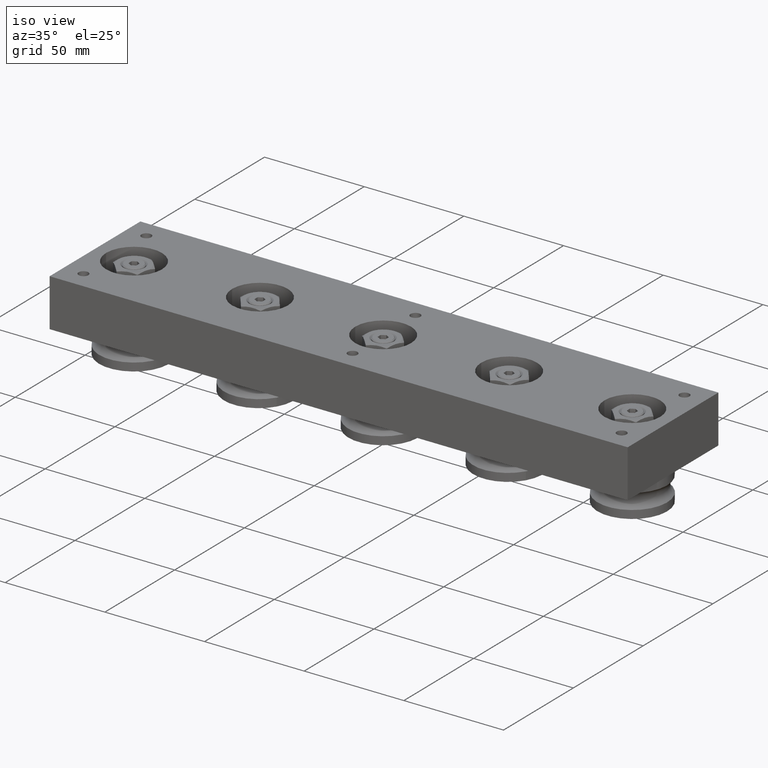
[diagram: clean part render]
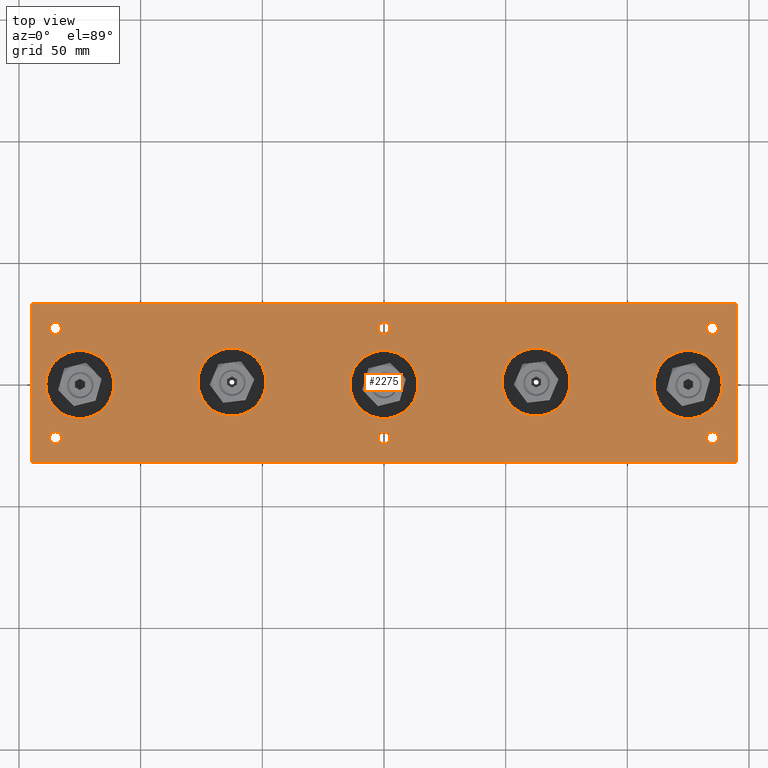
[diagram: tour spotlight — one face highlighted and labeled with its STEP entity id]
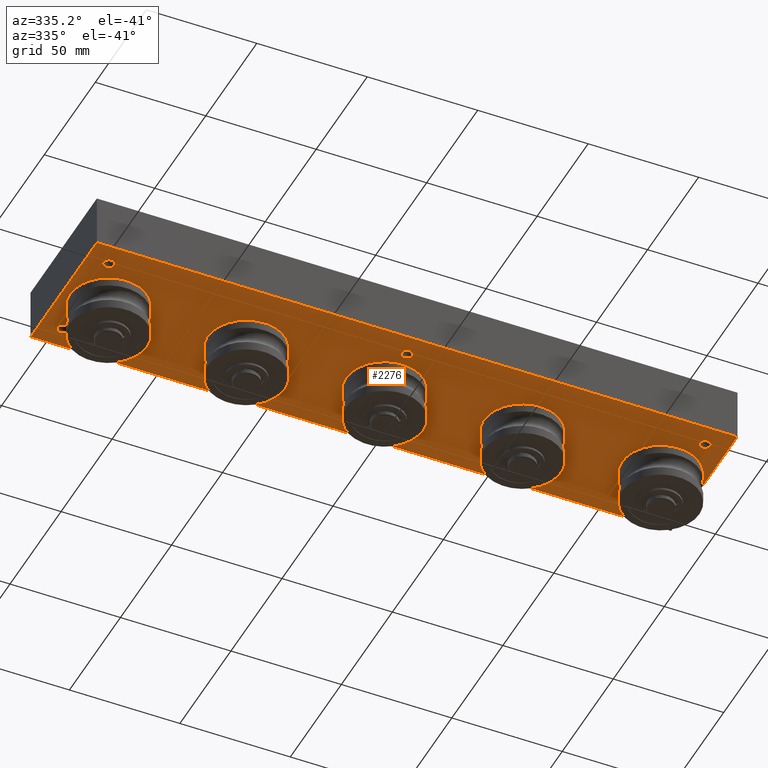
[diagram: tour spotlight — one face highlighted and labeled with its STEP entity id]
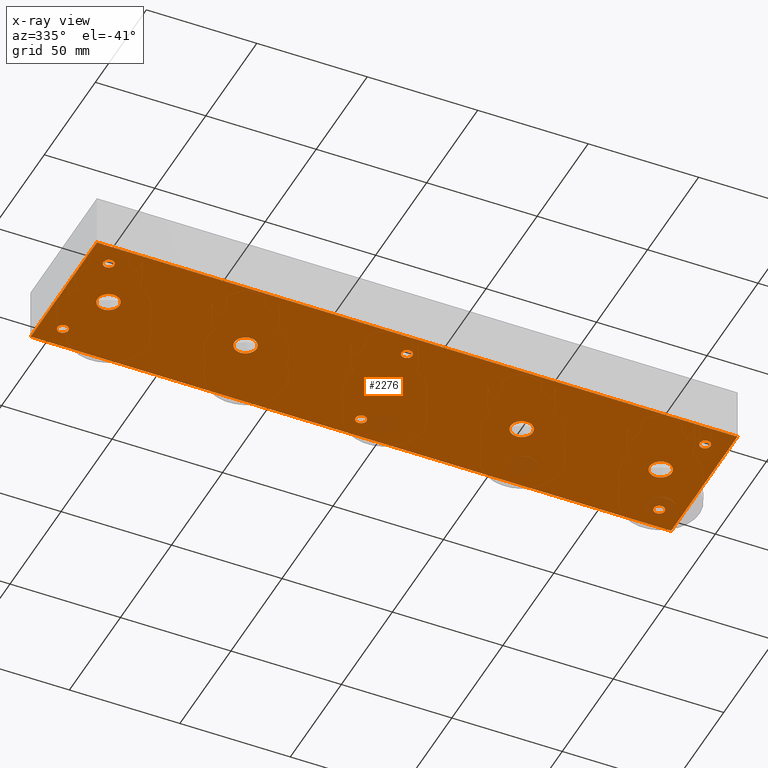
[diagram: x-ray of the same camera — body ghosted, this tour face saturated]
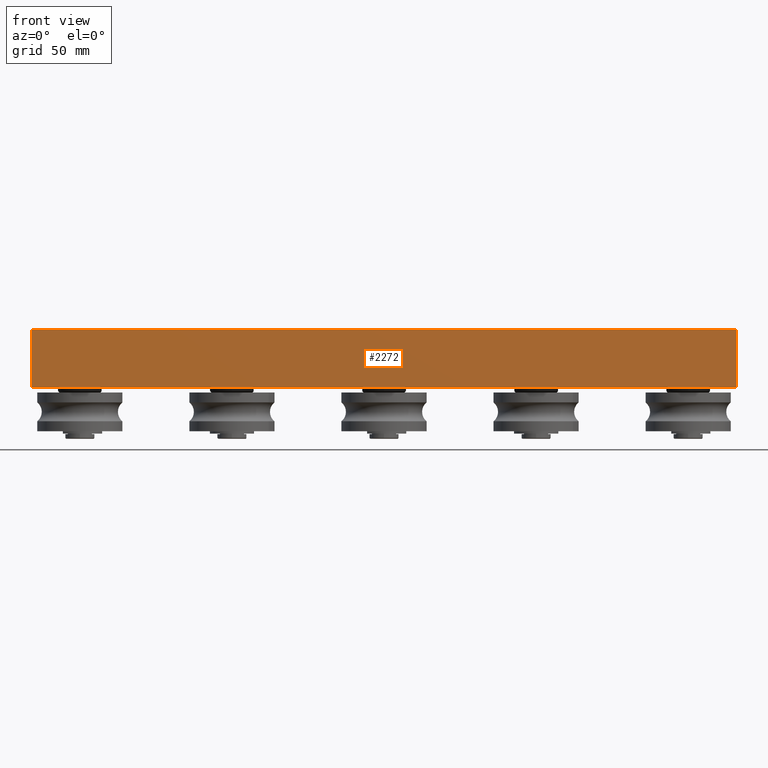
[diagram: tour spotlight — one face highlighted and labeled with its STEP entity id]
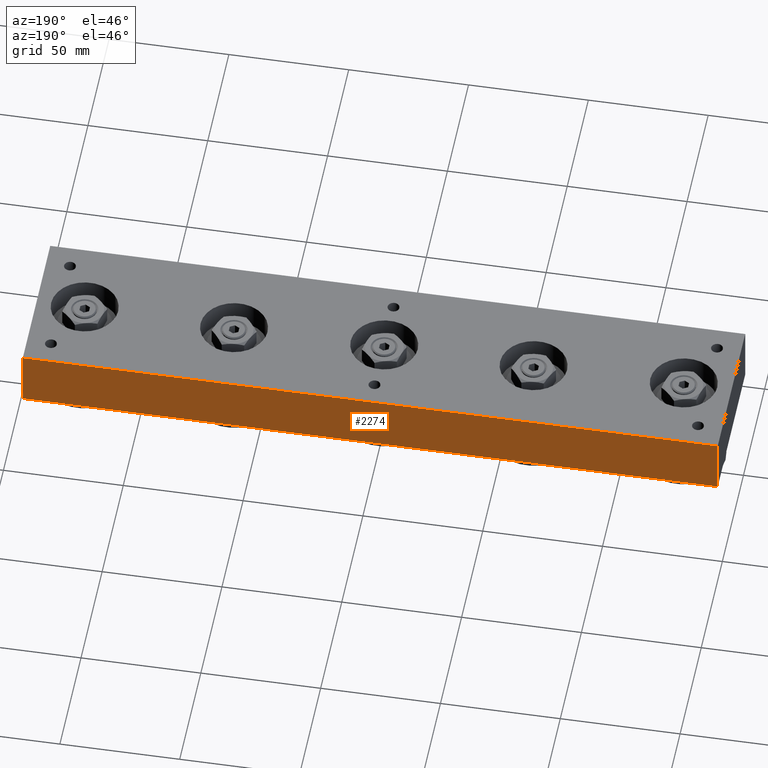
[diagram: tour spotlight — one face highlighted and labeled with its STEP entity id]
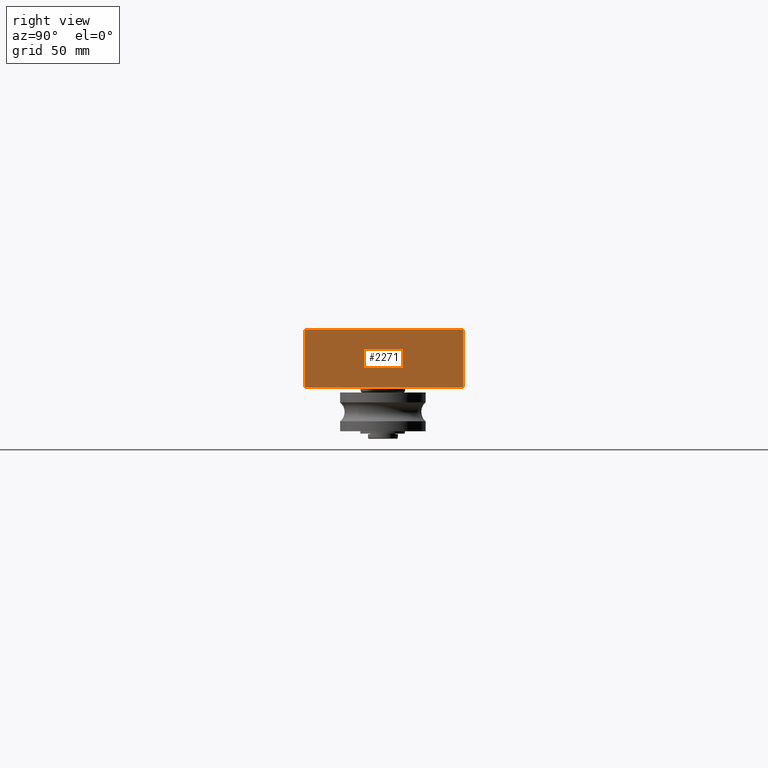
[diagram: tour spotlight — one face highlighted and labeled with its STEP entity id]
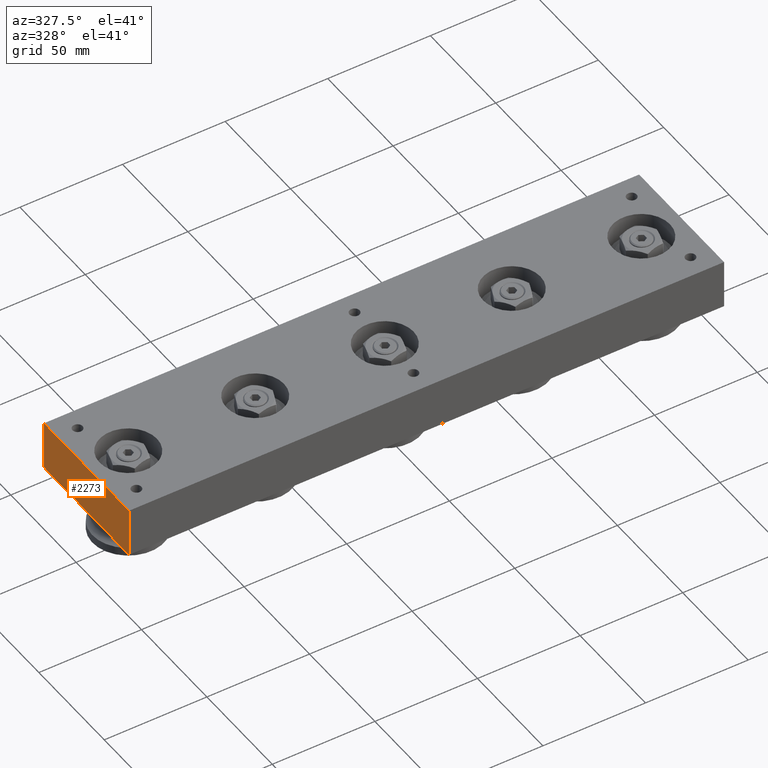
[diagram: tour spotlight — one face highlighted and labeled with its STEP entity id]
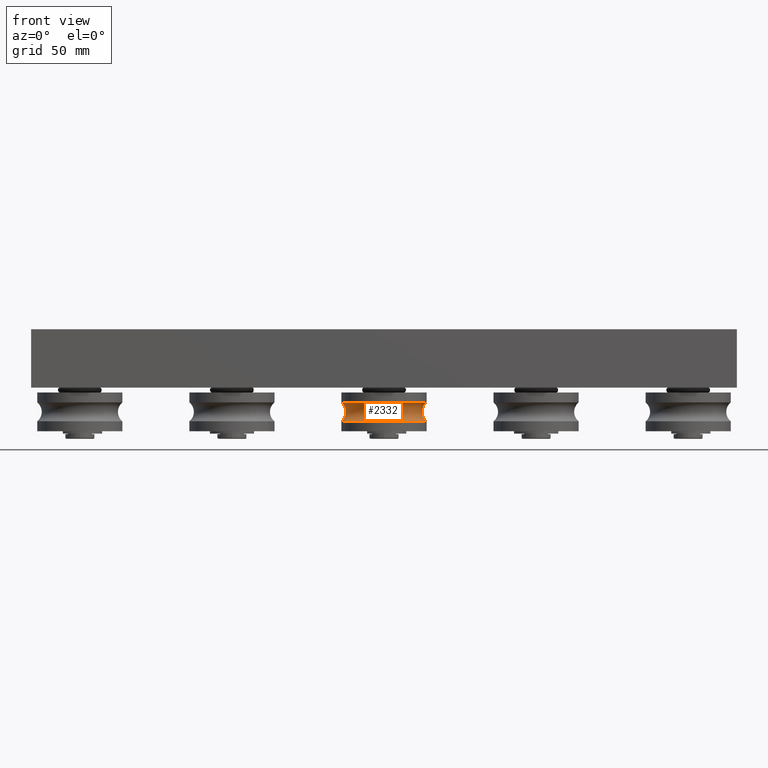
[diagram: tour spotlight — one face highlighted and labeled with its STEP entity id]
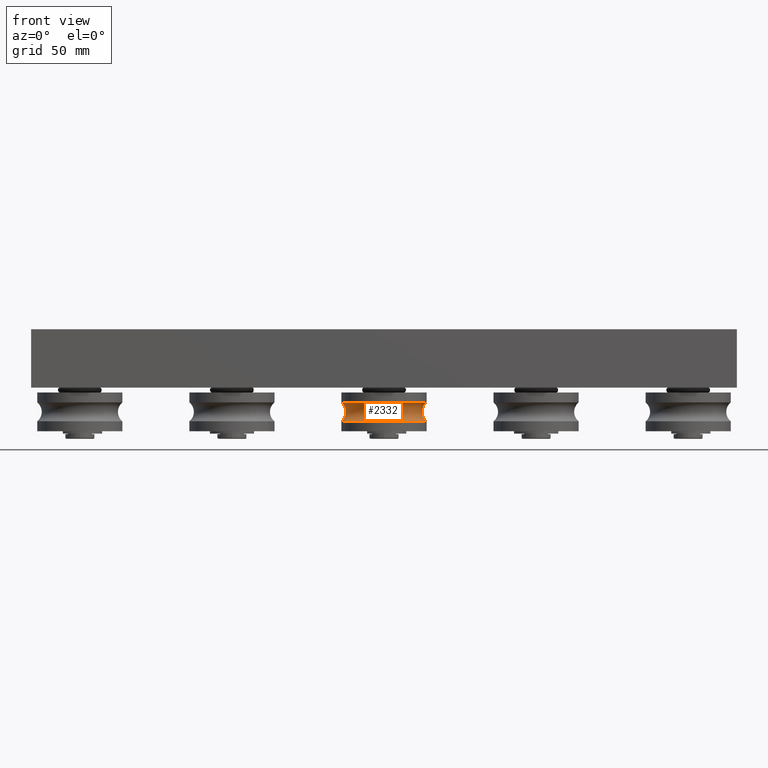
[diagram: tour spotlight — one face highlighted and labeled with its STEP entity id]
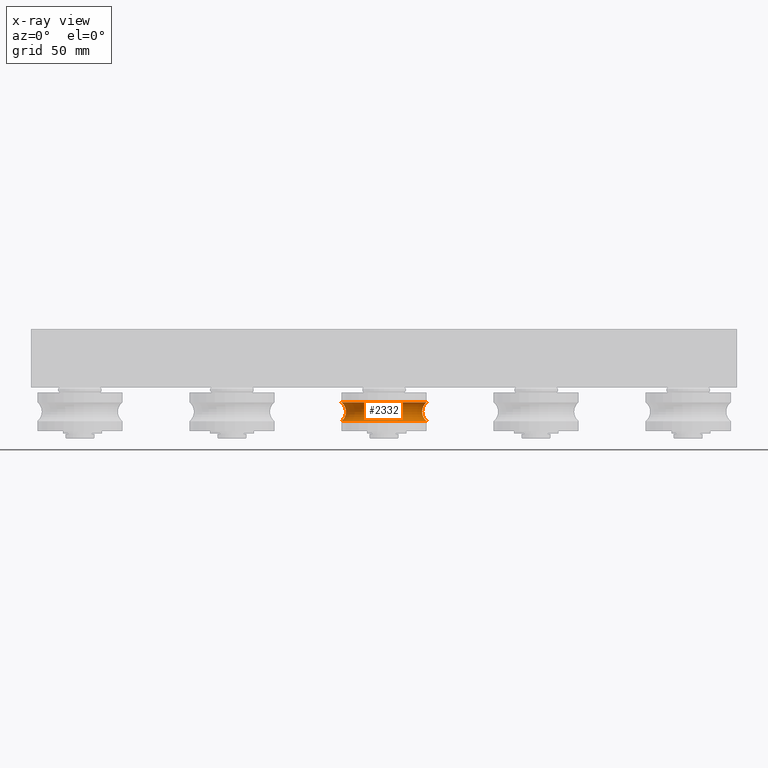
[diagram: x-ray of the same camera — body ghosted, this tour face saturated]
A machine part: a face-by-face anatomy tour. The part has 502 B-rep faces; the first image is the clean iso view, then the 8 largest visible faces are spotlighted one at a time (largest first), each with its STEP entity span.

Face 1 — top view, entity #2275. In plain terms, the highlighted planar face has unit normal (0, 0, 1).
Definition (entity closure, byte-faithful):
#188=FACE_BOUND('',#474,.T.);
#189=FACE_BOUND('',#475,.T.);
#190=FACE_BOUND('',#476,.T.);
#191=FACE_BOUND('',#477,.T.);
#192=FACE_BOUND('',#478,.T.);
#193=FACE_BOUND('',#479,.T.);
#194=FACE_BOUND('',#480,.T.);
#195=FACE_BOUND('',#481,.T.);
#196=FACE_BOUND('',#482,.T.);
#197=FACE_BOUND('',#483,.T.);
#198=FACE_BOUND('',#484,.T.);
#243=PLANE('',#2659);
#322=FACE_OUTER_BOUND('',#473,.T.);
#473=EDGE_LOOP('',(#1666,#1667,#1668,#1669));
#474=EDGE_LOOP('',(#1670));
#475=EDGE_LOOP('',(#1671));
#476=EDGE_LOOP('',(#1672));
#477=EDGE_LOOP('',(#1673));
#478=EDGE_LOOP('',(#1674));
#479=EDGE_LOOP('',(#1675));
#480=EDGE_LOOP('',(#1676));
#481=EDGE_LOOP('',(#1677));
#482=EDGE_LOOP('',(#1678));
#483=EDGE_LOOP('',(#1679));
#484=EDGE_LOOP('',(#1680));
#656=LINE('',#3793,#798);
#660=LINE('',#3801,#802);
#663=LINE('',#3807,#805);
#666=LINE('',#3812,#808);
#798=VECTOR('',#3043,10.);
#802=VECTOR('',#3049,10.);
#805=VECTOR('',#3054,10.);
#808=VECTOR('',#3059,10.);
#924=CIRCLE('',#2603,2.4585);
#926=CIRCLE('',#2606,2.4585);
#928=CIRCLE('',#2609,2.4585);
#930=CIRCLE('',#2612,2.4585);
#932=CIRCLE('',#2615,2.4585);
#934=CIRCLE('',#2618,2.4585);
#938=CIRCLE('',#2624,14.);
#942=CIRCLE('',#2631,14.);
#946=CIRCLE('',#2638,14.);
#950=CIRCLE('',#2645,14.);
#954=CIRCLE('',#2652,14.);
#1067=VERTEX_POINT('',#3690);
#1069=VERTEX_POINT('',#3696);
#1071=VERTEX_POINT('',#3702);
#1073=VERTEX_POINT('',#3708);
#1075=VERTEX_POINT('',#3714);
#1077=VERTEX_POINT('',#3720);
#1081=VERTEX_POINT('',#3731);
#1085=VERTEX_POINT('',#3744);
#1089=VERTEX_POINT('',#3757);
#1093=VERTEX_POINT('',#3770);
#1097=VERTEX_POINT('',#3783);
#1099=VERTEX_POINT('',#3791);
#1100=VERTEX_POINT('',#3792);
#1103=VERTEX_POINT('',#3800);
#1105=VERTEX_POINT('',#3806);
#1267=EDGE_CURVE('',#1067,#1067,#924,.T.);
#1270=EDGE_CURVE('',#1069,#1069,#926,.T.);
#1273=EDGE_CURVE('',#1071,#1071,#928,.T.);
#1276=EDGE_CURVE('',#1073,#1073,#930,.T.);
#1279=EDGE_CURVE('',#1075,#1075,#932,.T.);
#1282=EDGE_CURVE('',#1077,#1077,#934,.T.);
#1287=EDGE_CURVE('',#1081,#1081,#938,.T.);
#1293=EDGE_CURVE('',#1085,#1085,#942,.T.);
#1299=EDGE_CURVE('',#1089,#1089,#946,.T.);
#1305=EDGE_CURVE('',#1093,#1093,#950,.T.);
#1311=EDGE_CURVE('',#1097,#1097,#954,.T.);
#1315=EDGE_CURVE('',#1099,#1100,#656,.T.);
#1319=EDGE_CURVE('',#1100,#1103,#660,.T.);
#1322=EDGE_CURVE('',#1103,#1105,#663,.T.);
#1325=EDGE_CURVE('',#1105,#1099,#666,.T.);
#1666=ORIENTED_EDGE('',*,*,#1315,.F.);
#1667=ORIENTED_EDGE('',*,*,#1325,.F.);
#1668=ORIENTED_EDGE('',*,*,#1322,.F.);
#1669=ORIENTED_EDGE('',*,*,#1319,.F.);
#1670=ORIENTED_EDGE('',*,*,#1267,.T.);
#1671=ORIENTED_EDGE('',*,*,#1270,.T.);
#1672=ORIENTED_EDGE('',*,*,#1273,.T.);
#1673=ORIENTED_EDGE('',*,*,#1276,.T.);
#1674=ORIENTED_EDGE('',*,*,#1279,.T.);
#1675=ORIENTED_EDGE('',*,*,#1282,.T.);
#1676=ORIENTED_EDGE('',*,*,#1287,.T.);
#1677=ORIENTED_EDGE('',*,*,#1293,.T.);
#1678=ORIENTED_EDGE('',*,*,#1299,.T.);
#1679=ORIENTED_EDGE('',*,*,#1305,.T.);
#1680=ORIENTED_EDGE('',*,*,#1311,.T.);
#2275=ADVANCED_FACE('',(#322,#188,#189,#190,#191,#192,#193,#194,#195,#196,
#197,#198),#243,.T.);
#2603=AXIS2_PLACEMENT_3D('',#3691,#2921,#2922);
#2606=AXIS2_PLACEMENT_3D('',#3697,#2928,#2929);
#2609=AXIS2_PLACEMENT_3D('',#3703,#2935,#2936);
#2612=AXIS2_PLACEMENT_3D('',#3709,#2942,#2943);
#2615=AXIS2_PLACEMENT_3D('',#3715,#2949,#2950);
#2618=AXIS2_PLACEMENT_3D('',#3721,#2956,#2957);
#2624=AXIS2_PLACEMENT_3D('',#3732,#2969,#2970);
#2631=AXIS2_PLACEMENT_3D('',#3745,#2985,#2986);
#2638=AXIS2_PLACEMENT_3D('',#3758,#3001,#3002);
#2645=AXIS2_PLACEMENT_3D('',#3771,#3017,#3018);
#2652=AXIS2_PLACEMENT_3D('',#3784,#3033,#3034);
#2659=AXIS2_PLACEMENT_3D('',#3814,#3061,#3062);
#2921=DIRECTION('center_axis',(0.,0.,-1.));
#2922=DIRECTION('ref_axis',(1.,0.,0.));
#2928=DIRECTION('center_axis',(0.,0.,-1.));
#2929=DIRECTION('ref_axis',(1.,0.,0.));
#2935=DIRECTION('center_axis',(0.,0.,-1.));
#2936=DIRECTION('ref_axis',(1.,0.,0.));
#2942=DIRECTION('center_axis',(0.,0.,-1.));
#2943=DIRECTION('ref_axis',(1.,0.,0.));
#2949=DIRECTION('center_axis',(0.,0.,-1.));
#2950=DIRECTION('ref_axis',(1.,0.,0.));
#2956=DIRECTION('center_axis',(0.,0.,-1.));
#2957=DIRECTION('ref_axis',(1.,0.,0.));
#2969=DIRECTION('center_axis',(0.,0.,-1.));
#2970=DIRECTION('ref_axis',(1.,0.,0.));
#2985=DIRECTION('center_axis',(0.,0.,-1.));
#2986=DIRECTION('ref_axis',(1.,0.,0.));
#3001=DIRECTION('center_axis',(0.,0.,-1.));
#3002=DIRECTION('ref_axis',(1.,0.,0.));
#3017=DIRECTION('center_axis',(0.,0.,-1.));
#3018=DIRECTION('ref_axis',(1.,0.,0.));
#3033=DIRECTION('center_axis',(0.,0.,-1.));
#3034=DIRECTION('ref_axis',(1.,0.,0.));
#3043=DIRECTION('',(0.,-1.,0.));
#3049=DIRECTION('',(-1.,0.,0.));
#3054=DIRECTION('',(0.,1.,0.));
#3059=DIRECTION('',(1.,0.,0.));
#3061=DIRECTION('center_axis',(0.,0.,1.));
#3062=DIRECTION('ref_axis',(1.,0.,0.));
#3690=CARTESIAN_POINT('',(-2.4585,22.5,24.));
#3691=CARTESIAN_POINT('Origin',(0.,22.5,24.));
#3696=CARTESIAN_POINT('',(-2.4585,-22.5,24.));
#3697=CARTESIAN_POINT('Origin',(0.,-22.5,24.));
#3702=CARTESIAN_POINT('',(132.5415,22.5,24.));
#3703=CARTESIAN_POINT('Origin',(135.,22.5,24.));
#3708=CARTESIAN_POINT('',(132.5415,-22.5,24.));
#3709=CARTESIAN_POINT('Origin',(135.,-22.5,24.));
#3714=CARTESIAN_POINT('',(-137.4585,-22.5,24.));
#3715=CARTESIAN_POINT('Origin',(-135.,-22.5,24.));
#3720=CARTESIAN_POINT('',(-137.4585,22.5,24.));
#3721=CARTESIAN_POINT('Origin',(-135.,22.5,24.));
#3731=CARTESIAN_POINT('',(-139.,-0.600000000000007,24.));
#3732=CARTESIAN_POINT('Origin',(-125.,-0.600000000000005,24.));
#3744=CARTESIAN_POINT('',(111.,-0.600000000000007,24.));
#3745=CARTESIAN_POINT('Origin',(125.,-0.600000000000005,24.));
#3757=CARTESIAN_POINT('',(-14.,-0.600000000000007,24.));
#3758=CARTESIAN_POINT('Origin',(0.,-0.600000000000005,24.));
#3770=CARTESIAN_POINT('',(48.5,0.399999999999994,24.));
#3771=CARTESIAN_POINT('Origin',(62.5,0.399999999999996,24.));
#3783=CARTESIAN_POINT('',(-76.5,0.399999999999994,24.));
#3784=CARTESIAN_POINT('Origin',(-62.5,0.399999999999996,24.));
#3791=CARTESIAN_POINT('',(145.,32.5,24.));
#3792=CARTESIAN_POINT('',(145.,-32.5,24.));
#3793=CARTESIAN_POINT('',(145.,32.5,24.));
#3800=CARTESIAN_POINT('',(-145.,-32.5,24.));
#3801=CARTESIAN_POINT('',(145.,-32.5,24.));
#3806=CARTESIAN_POINT('',(-145.,32.5,24.));
#3807=CARTESIAN_POINT('',(-145.,-32.5,24.));
#3812=CARTESIAN_POINT('',(-145.,32.5,24.));
#3814=CARTESIAN_POINT('Origin',(0.,-7.39200989507146E-17,24.));

Face 2 — auxiliary view, entity #2276. An x-ray twin of the same camera follows (body ghosted, this face saturated) — the face is partly hidden behind the body. In plain terms, the highlighted planar face has unit normal (0, 0, 1).
Definition (entity closure, byte-faithful):
#199=FACE_BOUND('',#486,.T.);
#200=FACE_BOUND('',#487,.T.);
#201=FACE_BOUND('',#488,.T.);
#202=FACE_BOUND('',#489,.T.);
#203=FACE_BOUND('',#490,.T.);
#204=FACE_BOUND('',#491,.T.);
#205=FACE_BOUND('',#492,.T.);
#206=FACE_BOUND('',#493,.T.);
#207=FACE_BOUND('',#494,.T.);
#208=FACE_BOUND('',#495,.T.);
#209=FACE_BOUND('',#496,.T.);
#244=PLANE('',#2660);
#323=FACE_OUTER_BOUND('',#485,.T.);
#485=EDGE_LOOP('',(#1681,#1682,#1683,#1684));
#486=EDGE_LOOP('',(#1685));
#487=EDGE_LOOP('',(#1686));
#488=EDGE_LOOP('',(#1687));
#489=EDGE_LOOP('',(#1688));
#490=EDGE_LOOP('',(#1689));
#491=EDGE_LOOP('',(#1690));
#492=EDGE_LOOP('',(#1691));
#493=EDGE_LOOP('',(#1692));
#494=EDGE_LOOP('',(#1693));
#495=EDGE_LOOP('',(#1694));
#496=EDGE_LOOP('',(#1695));
#658=LINE('',#3797,#800);
#662=LINE('',#3804,#804);
#665=LINE('',#3810,#807);
#667=LINE('',#3813,#809);
#800=VECTOR('',#3045,10.);
#804=VECTOR('',#3051,10.);
#807=VECTOR('',#3056,10.);
#809=VECTOR('',#3060,10.);
#925=CIRCLE('',#2604,2.4585);
#927=CIRCLE('',#2607,2.4585);
#929=CIRCLE('',#2610,2.4585);
#931=CIRCLE('',#2613,2.4585);
#933=CIRCLE('',#2616,2.4585);
#935=CIRCLE('',#2619,2.4585);
#939=CIRCLE('',#2626,5.);
#943=CIRCLE('',#2633,5.);
#947=CIRCLE('',#2640,5.);
#951=CIRCLE('',#2647,5.);
#955=CIRCLE('',#2654,5.);
#1068=VERTEX_POINT('',#3692);
#1070=VERTEX_POINT('',#3698);
#1072=VERTEX_POINT('',#3704);
#1074=VERTEX_POINT('',#3710);
#1076=VERTEX_POINT('',#3716);
#1078=VERTEX_POINT('',#3722);
#1082=VERTEX_POINT('',#3735);
#1086=VERTEX_POINT('',#3748);
#1090=VERTEX_POINT('',#3761);
#1094=VERTEX_POINT('',#3774);
#1098=VERTEX_POINT('',#3787);
#1101=VERTEX_POINT('',#3794);
#1102=VERTEX_POINT('',#3796);
#1104=VERTEX_POINT('',#3802);
#1106=VERTEX_POINT('',#3808);
#1269=EDGE_CURVE('',#1068,#1068,#925,.T.);
#1272=EDGE_CURVE('',#1070,#1070,#927,.T.);
#1275=EDGE_CURVE('',#1072,#1072,#929,.T.);
#1278=EDGE_CURVE('',#1074,#1074,#931,.T.);
#1281=EDGE_CURVE('',#1076,#1076,#933,.T.);
#1284=EDGE_CURVE('',#1078,#1078,#935,.T.);
#1290=EDGE_CURVE('',#1082,#1082,#939,.T.);
#1296=EDGE_CURVE('',#1086,#1086,#943,.T.);
#1302=EDGE_CURVE('',#1090,#1090,#947,.T.);
#1308=EDGE_CURVE('',#1094,#1094,#951,.T.);
#1314=EDGE_CURVE('',#1098,#1098,#955,.T.);
#1317=EDGE_CURVE('',#1102,#1101,#658,.T.);
#1321=EDGE_CURVE('',#1101,#1104,#662,.T.);
#1324=EDGE_CURVE('',#1104,#1106,#665,.T.);
#1326=EDGE_CURVE('',#1106,#1102,#667,.T.);
#1681=ORIENTED_EDGE('',*,*,#1326,.T.);
#1682=ORIENTED_EDGE('',*,*,#1317,.T.);
#1683=ORIENTED_EDGE('',*,*,#1321,.T.);
#1684=ORIENTED_EDGE('',*,*,#1324,.T.);
#1685=ORIENTED_EDGE('',*,*,#1269,.T.);
#1686=ORIENTED_EDGE('',*,*,#1272,.T.);
#1687=ORIENTED_EDGE('',*,*,#1275,.T.);
#1688=ORIENTED_EDGE('',*,*,#1278,.T.);
#1689=ORIENTED_EDGE('',*,*,#1281,.T.);
#1690=ORIENTED_EDGE('',*,*,#1284,.T.);
#1691=ORIENTED_EDGE('',*,*,#1290,.T.);
#1692=ORIENTED_EDGE('',*,*,#1296,.T.);
#1693=ORIENTED_EDGE('',*,*,#1302,.T.);
#1694=ORIENTED_EDGE('',*,*,#1308,.T.);
#1695=ORIENTED_EDGE('',*,*,#1314,.T.);
#2276=ADVANCED_FACE('',(#323,#199,#200,#201,#202,#203,#204,#205,#206,#207,
#208,#209),#244,.F.);
#2604=AXIS2_PLACEMENT_3D('',#3694,#2924,#2925);
#2607=AXIS2_PLACEMENT_3D('',#3700,#2931,#2932);
#2610=AXIS2_PLACEMENT_3D('',#3706,#2938,#2939);
#2613=AXIS2_PLACEMENT_3D('',#3712,#2945,#2946);
#2616=AXIS2_PLACEMENT_3D('',#3718,#2952,#2953);
#2619=AXIS2_PLACEMENT_3D('',#3724,#2959,#2960);
#2626=AXIS2_PLACEMENT_3D('',#3737,#2975,#2976);
#2633=AXIS2_PLACEMENT_3D('',#3750,#2991,#2992);
#2640=AXIS2_PLACEMENT_3D('',#3763,#3007,#3008);
#2647=AXIS2_PLACEMENT_3D('',#3776,#3023,#3024);
#2654=AXIS2_PLACEMENT_3D('',#3789,#3039,#3040);
#2660=AXIS2_PLACEMENT_3D('',#3815,#3063,#3064);
#2924=DIRECTION('center_axis',(0.,0.,1.));
#2925=DIRECTION('ref_axis',(1.,0.,0.));
#2931=DIRECTION('center_axis',(0.,0.,1.));
#2932=DIRECTION('ref_axis',(1.,0.,0.));
#2938=DIRECTION('center_axis',(0.,0.,1.));
#2939=DIRECTION('ref_axis',(1.,0.,0.));
#2945=DIRECTION('center_axis',(0.,0.,1.));
#2946=DIRECTION('ref_axis',(1.,0.,0.));
#2952=DIRECTION('center_axis',(0.,0.,1.));
#2953=DIRECTION('ref_axis',(1.,0.,0.));
#2959=DIRECTION('center_axis',(0.,0.,1.));
#2960=DIRECTION('ref_axis',(1.,0.,0.));
#2975=DIRECTION('center_axis',(0.,0.,1.));
#2976=DIRECTION('ref_axis',(1.,0.,0.));
#2991=DIRECTION('center_axis',(0.,0.,1.));
#2992=DIRECTION('ref_axis',(1.,0.,0.));
#3007=DIRECTION('center_axis',(0.,0.,1.));
#3008=DIRECTION('ref_axis',(1.,0.,0.));
#3023=DIRECTION('center_axis',(0.,0.,1.));
#3024=DIRECTION('ref_axis',(1.,0.,0.));
#3039=DIRECTION('center_axis',(0.,0.,1.));
#3040=DIRECTION('ref_axis',(1.,0.,0.));
#3045=DIRECTION('',(0.,-1.,0.));
#3051=DIRECTION('',(-1.,0.,0.));
#3056=DIRECTION('',(0.,1.,0.));
#3060=DIRECTION('',(1.,0.,0.));
#3063=DIRECTION('center_axis',(0.,0.,1.));
#3064=DIRECTION('ref_axis',(1.,0.,0.));
#3692=CARTESIAN_POINT('',(-2.4585,22.5,0.));
#3694=CARTESIAN_POINT('Origin',(0.,22.5,0.));
#3698=CARTESIAN_POINT('',(-2.4585,-22.5,0.));
#3700=CARTESIAN_POINT('Origin',(0.,-22.5,0.));
#3704=CARTESIAN_POINT('',(132.5415,22.5,0.));
#3706=CARTESIAN_POINT('Origin',(135.,22.5,0.));
#3710=CARTESIAN_POINT('',(132.5415,-22.5,0.));
#3712=CARTESIAN_POINT('Origin',(135.,-22.5,0.));
#3716=CARTESIAN_POINT('',(-137.4585,-22.5,0.));
#3718=CARTESIAN_POINT('Origin',(-135.,-22.5,0.));
#3722=CARTESIAN_POINT('',(-137.4585,22.5,0.));
#3724=CARTESIAN_POINT('Origin',(-135.,22.5,0.));
#3735=CARTESIAN_POINT('',(-130.,-0.600000000000006,0.));
#3737=CARTESIAN_POINT('Origin',(-125.,-0.600000000000005,0.));
#3748=CARTESIAN_POINT('',(120.,-0.600000000000006,0.));
#3750=CARTESIAN_POINT('Origin',(125.,-0.600000000000005,0.));
#3761=CARTESIAN_POINT('',(-5.,-0.600000000000006,0.));
#3763=CARTESIAN_POINT('Origin',(0.,-0.600000000000005,0.));
#3774=CARTESIAN_POINT('',(57.5,0.399999999999995,0.));
#3776=CARTESIAN_POINT('Origin',(62.5,0.399999999999996,0.));
#3787=CARTESIAN_POINT('',(-67.5,0.399999999999995,0.));
#3789=CARTESIAN_POINT('Origin',(-62.5,0.399999999999996,0.));
#3794=CARTESIAN_POINT('',(145.,-32.5,0.));
#3796=CARTESIAN_POINT('',(145.,32.5,0.));
#3797=CARTESIAN_POINT('',(145.,32.5,0.));
#3802=CARTESIAN_POINT('',(-145.,-32.5,0.));
#3804=CARTESIAN_POINT('',(145.,-32.5,0.));
#3808=CARTESIAN_POINT('',(-145.,32.5,0.));
#3810=CARTESIAN_POINT('',(-145.,-32.5,0.));
#3813=CARTESIAN_POINT('',(-145.,32.5,0.));
#3815=CARTESIAN_POINT('Origin',(0.,7.39200989507146E-17,0.));

Face 3 — front view, entity #2272. In plain terms, the highlighted planar face has unit normal (0, -1, 0).
Definition (entity closure, byte-faithful):
#240=PLANE('',#2656);
#319=FACE_OUTER_BOUND('',#470,.T.);
#470=EDGE_LOOP('',(#1654,#1655,#1656,#1657));
#657=LINE('',#3795,#799);
#660=LINE('',#3801,#802);
#661=LINE('',#3803,#803);
#662=LINE('',#3804,#804);
#799=VECTOR('',#3044,10.);
#802=VECTOR('',#3049,10.);
#803=VECTOR('',#3050,10.);
#804=VECTOR('',#3051,10.);
#1100=VERTEX_POINT('',#3792);
#1101=VERTEX_POINT('',#3794);
#1103=VERTEX_POINT('',#3800);
#1104=VERTEX_POINT('',#3802);
#1316=EDGE_CURVE('',#1101,#1100,#657,.T.);
#1319=EDGE_CURVE('',#1100,#1103,#660,.T.);
#1320=EDGE_CURVE('',#1104,#1103,#661,.T.);
#1321=EDGE_CURVE('',#1101,#1104,#662,.T.);
#1654=ORIENTED_EDGE('',*,*,#1319,.T.);
#1655=ORIENTED_EDGE('',*,*,#1320,.F.);
#1656=ORIENTED_EDGE('',*,*,#1321,.F.);
#1657=ORIENTED_EDGE('',*,*,#1316,.T.);
#2272=ADVANCED_FACE('',(#319),#240,.T.);
#2656=AXIS2_PLACEMENT_3D('',#3799,#3047,#3048);
#3044=DIRECTION('',(0.,0.,1.));
#3047=DIRECTION('center_axis',(0.,-1.,0.));
#3048=DIRECTION('ref_axis',(0.,0.,-1.));
#3049=DIRECTION('',(-1.,0.,0.));
#3050=DIRECTION('',(0.,0.,1.));
#3051=DIRECTION('',(-1.,0.,0.));
#3792=CARTESIAN_POINT('',(145.,-32.5,24.));
#3794=CARTESIAN_POINT('',(145.,-32.5,0.));
#3795=CARTESIAN_POINT('',(145.,-32.5,0.));
#3799=CARTESIAN_POINT('Origin',(145.,-32.5,0.));
#3800=CARTESIAN_POINT('',(-145.,-32.5,24.));
#3801=CARTESIAN_POINT('',(145.,-32.5,24.));
#3802=CARTESIAN_POINT('',(-145.,-32.5,0.));
#3803=CARTESIAN_POINT('',(-145.,-32.5,0.));
#3804=CARTESIAN_POINT('',(145.,-32.5,0.));

Face 4 — auxiliary view, entity #2274. In plain terms, the highlighted planar face has unit normal (0, 1, 0).
Definition (entity closure, byte-faithful):
#242=PLANE('',#2658);
#321=FACE_OUTER_BOUND('',#472,.T.);
#472=EDGE_LOOP('',(#1662,#1663,#1664,#1665));
#659=LINE('',#3798,#801);
#664=LINE('',#3809,#806);
#666=LINE('',#3812,#808);
#667=LINE('',#3813,#809);
#801=VECTOR('',#3046,10.);
#806=VECTOR('',#3055,10.);
#808=VECTOR('',#3059,10.);
#809=VECTOR('',#3060,10.);
#1099=VERTEX_POINT('',#3791);
#1102=VERTEX_POINT('',#3796);
#1105=VERTEX_POINT('',#3806);
#1106=VERTEX_POINT('',#3808);
#1318=EDGE_CURVE('',#1102,#1099,#659,.T.);
#1323=EDGE_CURVE('',#1106,#1105,#664,.T.);
#1325=EDGE_CURVE('',#1105,#1099,#666,.T.);
#1326=EDGE_CURVE('',#1106,#1102,#667,.T.);
#1662=ORIENTED_EDGE('',*,*,#1325,.T.);
#1663=ORIENTED_EDGE('',*,*,#1318,.F.);
#1664=ORIENTED_EDGE('',*,*,#1326,.F.);
#1665=ORIENTED_EDGE('',*,*,#1323,.T.);
#2274=ADVANCED_FACE('',(#321),#242,.T.);
#2658=AXIS2_PLACEMENT_3D('',#3811,#3057,#3058);
#3046=DIRECTION('',(0.,0.,1.));
#3055=DIRECTION('',(0.,0.,1.));
#3057=DIRECTION('center_axis',(0.,1.,0.));
#3058=DIRECTION('ref_axis',(0.,0.,1.));
#3059=DIRECTION('',(1.,0.,0.));
#3060=DIRECTION('',(1.,0.,0.));
#3791=CARTESIAN_POINT('',(145.,32.5,24.));
#3796=CARTESIAN_POINT('',(145.,32.5,0.));
#3798=CARTESIAN_POINT('',(145.,32.5,0.));
#3806=CARTESIAN_POINT('',(-145.,32.5,24.));
#3808=CARTESIAN_POINT('',(-145.,32.5,0.));
#3809=CARTESIAN_POINT('',(-145.,32.5,0.));
#3811=CARTESIAN_POINT('Origin',(-145.,32.5,0.));
#3812=CARTESIAN_POINT('',(-145.,32.5,24.));
#3813=CARTESIAN_POINT('',(-145.,32.5,0.));

Face 5 — right view, entity #2271. In plain terms, the highlighted planar face has unit normal (1, 0, 0).
Definition (entity closure, byte-faithful):
#239=PLANE('',#2655);
#318=FACE_OUTER_BOUND('',#469,.T.);
#469=EDGE_LOOP('',(#1650,#1651,#1652,#1653));
#656=LINE('',#3793,#798);
#657=LINE('',#3795,#799);
#658=LINE('',#3797,#800);
#659=LINE('',#3798,#801);
#798=VECTOR('',#3043,10.);
#799=VECTOR('',#3044,10.);
#800=VECTOR('',#3045,10.);
#801=VECTOR('',#3046,10.);
#1099=VERTEX_POINT('',#3791);
#1100=VERTEX_POINT('',#3792);
#1101=VERTEX_POINT('',#3794);
#1102=VERTEX_POINT('',#3796);
#1315=EDGE_CURVE('',#1099,#1100,#656,.T.);
#1316=EDGE_CURVE('',#1101,#1100,#657,.T.);
#1317=EDGE_CURVE('',#1102,#1101,#658,.T.);
#1318=EDGE_CURVE('',#1102,#1099,#659,.T.);
#1650=ORIENTED_EDGE('',*,*,#1315,.T.);
#1651=ORIENTED_EDGE('',*,*,#1316,.F.);
#1652=ORIENTED_EDGE('',*,*,#1317,.F.);
#1653=ORIENTED_EDGE('',*,*,#1318,.T.);
#2271=ADVANCED_FACE('',(#318),#239,.T.);
#2655=AXIS2_PLACEMENT_3D('',#3790,#3041,#3042);
#3041=DIRECTION('center_axis',(1.,0.,0.));
#3042=DIRECTION('ref_axis',(0.,0.,-1.));
#3043=DIRECTION('',(0.,-1.,0.));
#3044=DIRECTION('',(0.,0.,1.));
#3045=DIRECTION('',(0.,-1.,0.));
#3046=DIRECTION('',(0.,0.,1.));
#3790=CARTESIAN_POINT('Origin',(145.,32.5,0.));
#3791=CARTESIAN_POINT('',(145.,32.5,24.));
#3792=CARTESIAN_POINT('',(145.,-32.5,24.));
#3793=CARTESIAN_POINT('',(145.,32.5,24.));
#3794=CARTESIAN_POINT('',(145.,-32.5,0.));
#3795=CARTESIAN_POINT('',(145.,-32.5,0.));
#3796=CARTESIAN_POINT('',(145.,32.5,0.));
#3797=CARTESIAN_POINT('',(145.,32.5,0.));
#3798=CARTESIAN_POINT('',(145.,32.5,0.));

Face 6 — auxiliary view, entity #2273. In plain terms, the highlighted planar face has unit normal (-1, 0, 0).
Definition (entity closure, byte-faithful):
#241=PLANE('',#2657);
#320=FACE_OUTER_BOUND('',#471,.T.);
#471=EDGE_LOOP('',(#1658,#1659,#1660,#1661));
#661=LINE('',#3803,#803);
#663=LINE('',#3807,#805);
#664=LINE('',#3809,#806);
#665=LINE('',#3810,#807);
#803=VECTOR('',#3050,10.);
#805=VECTOR('',#3054,10.);
#806=VECTOR('',#3055,10.);
#807=VECTOR('',#3056,10.);
#1103=VERTEX_POINT('',#3800);
#1104=VERTEX_POINT('',#3802);
#1105=VERTEX_POINT('',#3806);
#1106=VERTEX_POINT('',#3808);
#1320=EDGE_CURVE('',#1104,#1103,#661,.T.);
#1322=EDGE_CURVE('',#1103,#1105,#663,.T.);
#1323=EDGE_CURVE('',#1106,#1105,#664,.T.);
#1324=EDGE_CURVE('',#1104,#1106,#665,.T.);
#1658=ORIENTED_EDGE('',*,*,#1322,.T.);
#1659=ORIENTED_EDGE('',*,*,#1323,.F.);
#1660=ORIENTED_EDGE('',*,*,#1324,.F.);
#1661=ORIENTED_EDGE('',*,*,#1320,.T.);
#2273=ADVANCED_FACE('',(#320),#241,.T.);
#2657=AXIS2_PLACEMENT_3D('',#3805,#3052,#3053);
#3050=DIRECTION('',(0.,0.,1.));
#3052=DIRECTION('center_axis',(-1.,0.,0.));
#3053=DIRECTION('ref_axis',(0.,0.,1.));
#3054=DIRECTION('',(0.,1.,0.));
#3055=DIRECTION('',(0.,0.,1.));
#3056=DIRECTION('',(0.,1.,0.));
#3800=CARTESIAN_POINT('',(-145.,-32.5,24.));
#3802=CARTESIAN_POINT('',(-145.,-32.5,0.));
#3803=CARTESIAN_POINT('',(-145.,-32.5,0.));
#3805=CARTESIAN_POINT('Origin',(-145.,-32.5,0.));
#3806=CARTESIAN_POINT('',(-145.,32.5,24.));
#3807=CARTESIAN_POINT('',(-145.,-32.5,24.));
#3808=CARTESIAN_POINT('',(-145.,32.5,0.));
#3809=CARTESIAN_POINT('',(-145.,32.5,0.));
#3810=CARTESIAN_POINT('',(-145.,-32.5,0.));

Face 7 — front view, entity #2332. In plain terms, the highlighted toroidal blend (fillet) surface has major radius 20.65 mm and minor (blend) radius 5 mm.
Definition (entity closure, byte-faithful):
#99=TOROIDAL_SURFACE('',#2771,20.65,5.);
#379=FACE_OUTER_BOUND('',#568,.T.);
#568=EDGE_LOOP('',(#1910,#1911,#1912,#1913,#1914,#1915));
#994=CIRCLE('',#2753,17.5);
#996=CIRCLE('',#2755,17.5);
#998=CIRCLE('',#2758,17.5);
#999=CIRCLE('',#2759,17.5);
#1006=CIRCLE('',#2772,5.);
#1171=VERTEX_POINT('',#4030);
#1172=VERTEX_POINT('',#4031);
#1175=VERTEX_POINT('',#4040);
#1176=VERTEX_POINT('',#4042);
#1423=EDGE_CURVE('',#1171,#1172,#994,.T.);
#1426=EDGE_CURVE('',#1172,#1171,#996,.T.);
#1429=EDGE_CURVE('',#1176,#1175,#998,.T.);
#1430=EDGE_CURVE('',#1175,#1176,#999,.T.);
#1438=EDGE_CURVE('',#1172,#1176,#1006,.T.);
#1910=ORIENTED_EDGE('',*,*,#1423,.T.);
#1911=ORIENTED_EDGE('',*,*,#1438,.T.);
#1912=ORIENTED_EDGE('',*,*,#1429,.T.);
#1913=ORIENTED_EDGE('',*,*,#1430,.T.);
#1914=ORIENTED_EDGE('',*,*,#1438,.F.);
#1915=ORIENTED_EDGE('',*,*,#1426,.T.);
#2332=ADVANCED_FACE('',(#379),#99,.F.);
#2753=AXIS2_PLACEMENT_3D('',#4032,#3307,#3308);
#2755=AXIS2_PLACEMENT_3D('',#4036,#3312,#3313);
#2758=AXIS2_PLACEMENT_3D('',#4043,#3319,#3320);
#2759=AXIS2_PLACEMENT_3D('',#4044,#3321,#3322);
#2771=AXIS2_PLACEMENT_3D('',#4063,#3346,#3347);
#2772=AXIS2_PLACEMENT_3D('',#4064,#3348,#3349);
#3307=DIRECTION('center_axis',(0.,0.,1.));
#3308=DIRECTION('ref_axis',(0.,-1.,0.));
#3312=DIRECTION('center_axis',(0.,0.,1.));
#3313=DIRECTION('ref_axis',(0.,-1.,0.));
#3319=DIRECTION('center_axis',(0.,0.,-1.));
#3320=DIRECTION('ref_axis',(0.,-1.,0.));
#3321=DIRECTION('center_axis',(0.,0.,-1.));
#3322=DIRECTION('ref_axis',(0.,-1.,0.));
#3346=DIRECTION('center_axis',(4.9243499144701E-17,1.16870043086235E-16,
-1.));
#3347=DIRECTION('ref_axis',(-1.,0.,-3.46268389746637E-17));
#3348=DIRECTION('center_axis',(1.22464679914735E-16,1.,1.16870043086235E-16));
#3349=DIRECTION('ref_axis',(1.,-1.22464679914735E-16,4.32835487183297E-17));
#4030=CARTESIAN_POINT('',(-17.5,-2.14313189850787E-15,-11.8329756630708));
#4031=CARTESIAN_POINT('',(17.5,-2.79955139008714E-15,-11.8329756630708));
#4032=CARTESIAN_POINT('Origin',(0.,0.,-11.8329756630708));
#4036=CARTESIAN_POINT('Origin',(0.,0.,-11.8329756630708));
#4040=CARTESIAN_POINT('',(-17.5,-2.14313189850787E-15,-4.06702433692922));
#4042=CARTESIAN_POINT('',(17.5,-3.70715845617891E-15,-4.06702433692922));
#4043=CARTESIAN_POINT('Origin',(0.,0.,-4.06702433692922));
#4044=CARTESIAN_POINT('Origin',(0.,0.,-4.06702433692922));
#4063=CARTESIAN_POINT('Origin',(9.0205620750794E-16,-1.11022302462516E-15,
-7.95));
#4064=CARTESIAN_POINT('Origin',(20.65,-3.63911866486444E-15,-7.95));

Face 8 — front view, entity #2332. An x-ray twin of the same camera follows (body ghosted, this face saturated) — the face is partly hidden behind the body. In plain terms, the highlighted toroidal blend (fillet) surface has major radius 20.65 mm and minor (blend) radius 5 mm.
Definition (entity closure, byte-faithful):
#99=TOROIDAL_SURFACE('',#2771,20.65,5.);
#379=FACE_OUTER_BOUND('',#568,.T.);
#568=EDGE_LOOP('',(#1910,#1911,#1912,#1913,#1914,#1915));
#994=CIRCLE('',#2753,17.5);
#996=CIRCLE('',#2755,17.5);
#998=CIRCLE('',#2758,17.5);
#999=CIRCLE('',#2759,17.5);
#1006=CIRCLE('',#2772,5.);
#1171=VERTEX_POINT('',#4030);
#1172=VERTEX_POINT('',#4031);
#1175=VERTEX_POINT('',#4040);
#1176=VERTEX_POINT('',#4042);
#1423=EDGE_CURVE('',#1171,#1172,#994,.T.);
#1426=EDGE_CURVE('',#1172,#1171,#996,.T.);
#1429=EDGE_CURVE('',#1176,#1175,#998,.T.);
#1430=EDGE_CURVE('',#1175,#1176,#999,.T.);
#1438=EDGE_CURVE('',#1172,#1176,#1006,.T.);
#1910=ORIENTED_EDGE('',*,*,#1423,.T.);
#1911=ORIENTED_EDGE('',*,*,#1438,.T.);
#1912=ORIENTED_EDGE('',*,*,#1429,.T.);
#1913=ORIENTED_EDGE('',*,*,#1430,.T.);
#1914=ORIENTED_EDGE('',*,*,#1438,.F.);
#1915=ORIENTED_EDGE('',*,*,#1426,.T.);
#2332=ADVANCED_FACE('',(#379),#99,.F.);
#2753=AXIS2_PLACEMENT_3D('',#4032,#3307,#3308);
#2755=AXIS2_PLACEMENT_3D('',#4036,#3312,#3313);
#2758=AXIS2_PLACEMENT_3D('',#4043,#3319,#3320);
#2759=AXIS2_PLACEMENT_3D('',#4044,#3321,#3322);
#2771=AXIS2_PLACEMENT_3D('',#4063,#3346,#3347);
#2772=AXIS2_PLACEMENT_3D('',#4064,#3348,#3349);
#3307=DIRECTION('center_axis',(0.,0.,1.));
#3308=DIRECTION('ref_axis',(0.,-1.,0.));
#3312=DIRECTION('center_axis',(0.,0.,1.));
#3313=DIRECTION('ref_axis',(0.,-1.,0.));
#3319=DIRECTION('center_axis',(0.,0.,-1.));
#3320=DIRECTION('ref_axis',(0.,-1.,0.));
#3321=DIRECTION('center_axis',(0.,0.,-1.));
#3322=DIRECTION('ref_axis',(0.,-1.,0.));
#3346=DIRECTION('center_axis',(4.9243499144701E-17,1.16870043086235E-16,
-1.));
#3347=DIRECTION('ref_axis',(-1.,0.,-3.46268389746637E-17));
#3348=DIRECTION('center_axis',(1.22464679914735E-16,1.,1.16870043086235E-16));
#3349=DIRECTION('ref_axis',(1.,-1.22464679914735E-16,4.32835487183297E-17));
#4030=CARTESIAN_POINT('',(-17.5,-2.14313189850787E-15,-11.8329756630708));
#4031=CARTESIAN_POINT('',(17.5,-2.79955139008714E-15,-11.8329756630708));
#4032=CARTESIAN_POINT('Origin',(0.,0.,-11.8329756630708));
#4036=CARTESIAN_POINT('Origin',(0.,0.,-11.8329756630708));
#4040=CARTESIAN_POINT('',(-17.5,-2.14313189850787E-15,-4.06702433692922));
#4042=CARTESIAN_POINT('',(17.5,-3.70715845617891E-15,-4.06702433692922));
#4043=CARTESIAN_POINT('Origin',(0.,0.,-4.06702433692922));
#4044=CARTESIAN_POINT('Origin',(0.,0.,-4.06702433692922));
#4063=CARTESIAN_POINT('Origin',(9.0205620750794E-16,-1.11022302462516E-15,
-7.95));
#4064=CARTESIAN_POINT('Origin',(20.65,-3.63911866486444E-15,-7.95));